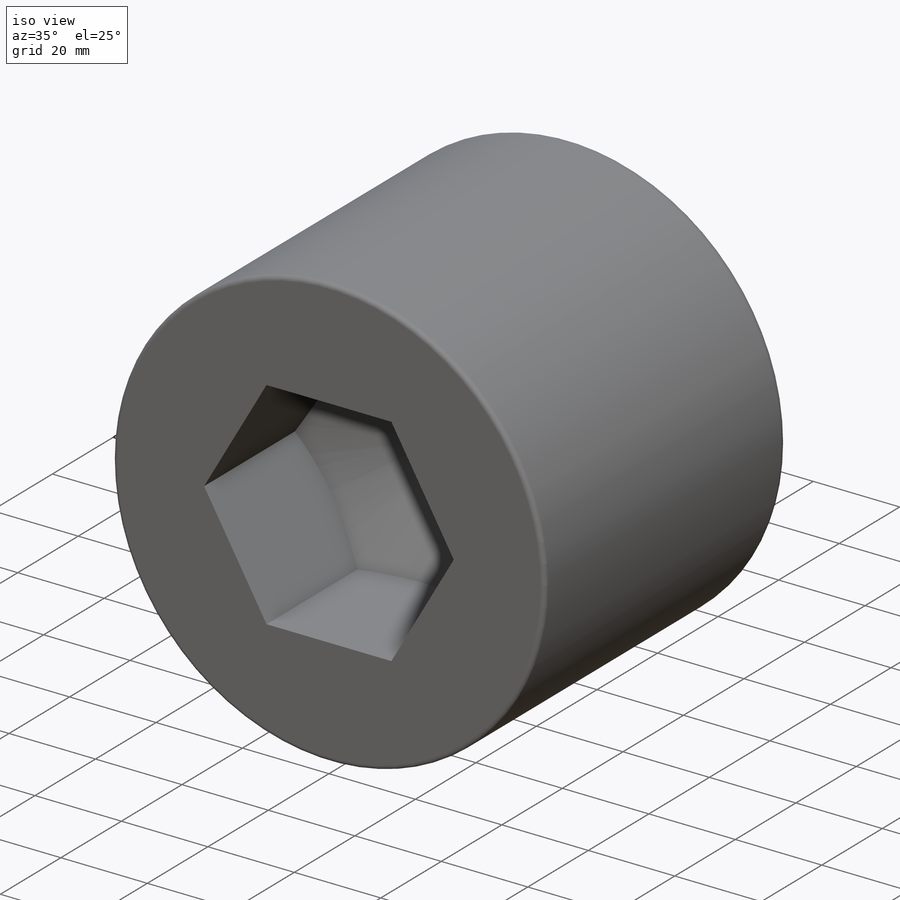
[diagram: iso view]
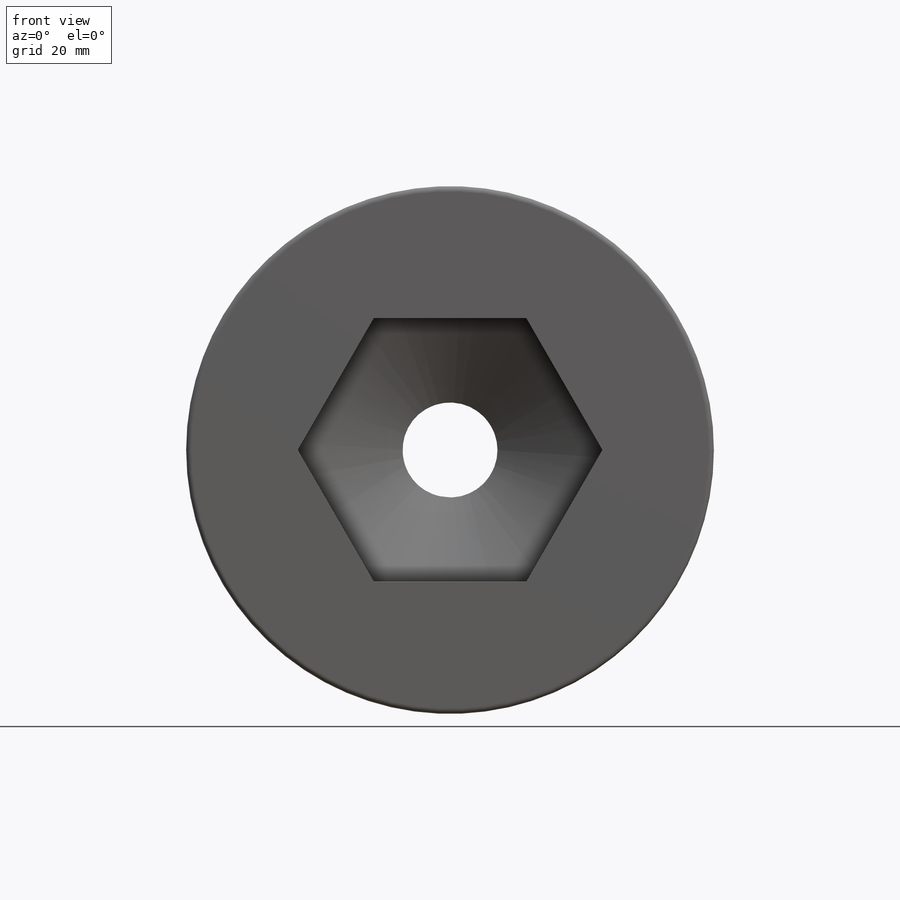
[diagram: front view]
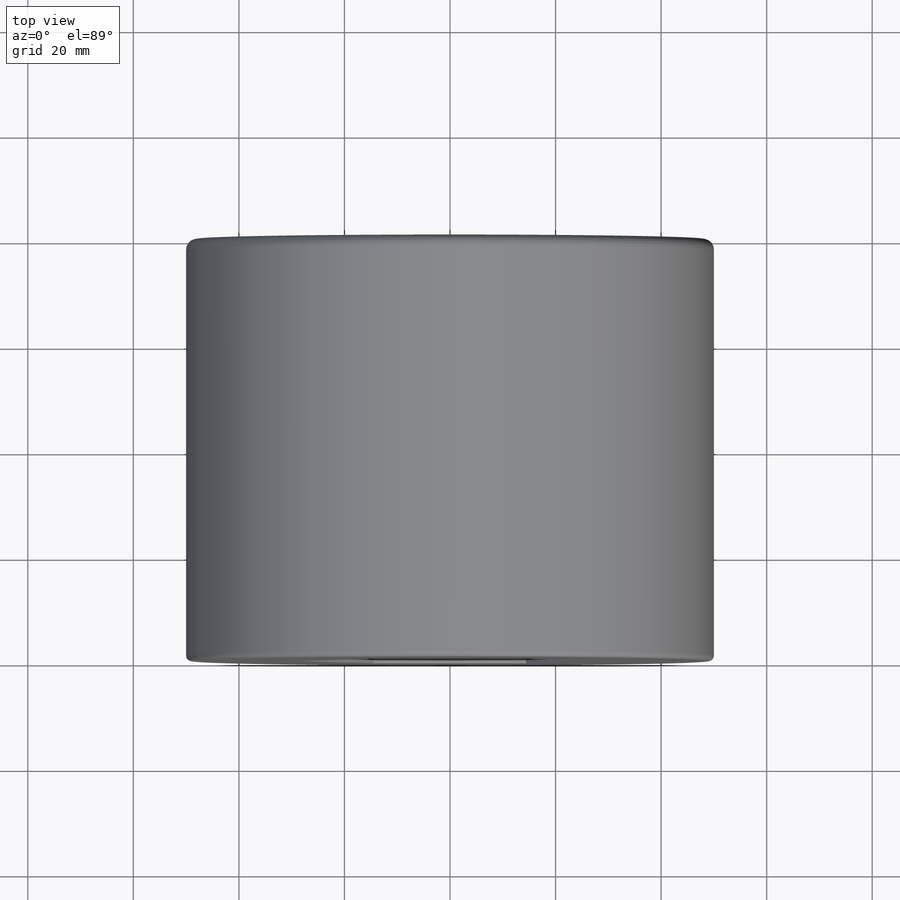
[diagram: top view]
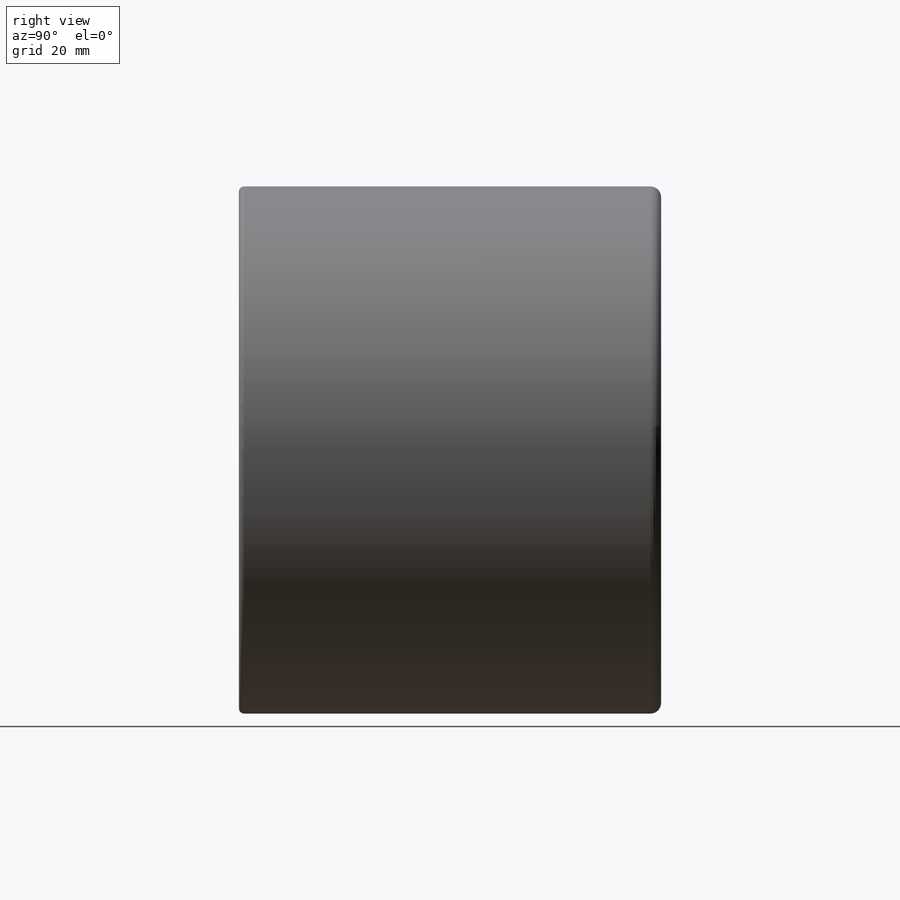
[diagram: right view]
SOLIDWORKS PART (.sldprt)
format: sldprt  version: not decoded by parser v0  size: 244,736 bytes
history: native  units: mm
features: sketch x4, plane x3, extrude x2, fillet x2, material x1, revolve x1, cut_extrude x1, boolean_combine x1 (+9 scaffold rows collapsed)
feature tree (24):
  scaffold x9  (default folders/planes/origin — collapsed)
  material  "Material <nicht festgelegt>"
  plane  "Ebene vorne"
  plane  "Ebene oben"
  plane  "Ebene rechts"
  sketch  "Skizze1"  dims[c1.D1=~108.400372mm c2.D1=100.0mm c2.D2=18.0mm]
  extrude  "Aufsatz-Linear austragen1"  Depth=80mm
  fillet  "Verrundung1"  Radius=2mm
  fillet  "Verrundung2"  Radius=1mm
  sketch  "Skizze2"  dims[c1.D1=~25.186117mm c2.D1=50.0mm]
  extrude  "Aufsatz-Linear austragen2"  Depth=30mm
  sketch  "Skizze10"  dims[c1.D1=~28.867513mm c2.D1=30.0deg c3.D1=~20.151612mm c4.D1=30.0deg]
  revolve  "Rotation1"  Angle=360deg
  sketch  "Skizze12"  dims[D1=0.0mm]
  cut_extrude  "Schnitt-Linear austragen3"  [1 undecoded]
  boolean_combine  "Kombinieren1"
decode coverage: 9 of 11 modeling features carry decoded parameters
note: ~ marks probable driven/reference dimensions
note: 1 parameter value undecoded
note: suppression state not decoded; provenance and decode notes live in map.json
